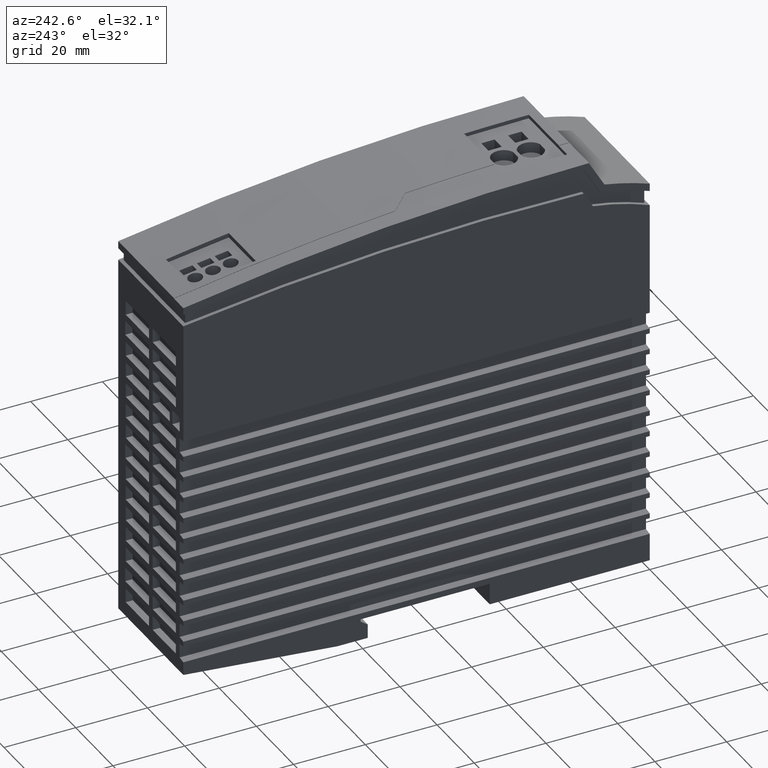
[diagram: clean part render]
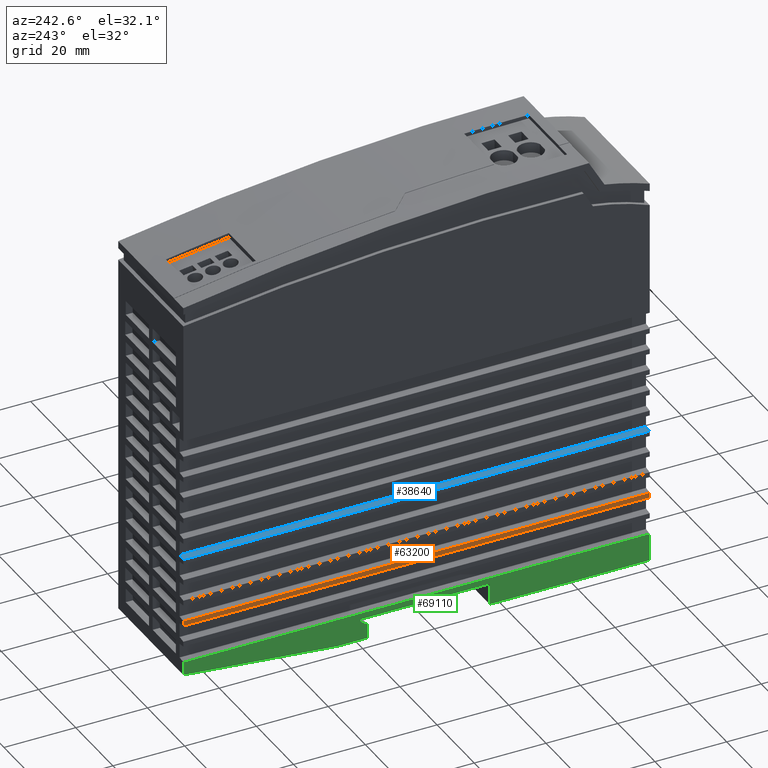
[diagram: same view with three faces highlighted in distinct colors, each labeled with its STEP entity id]
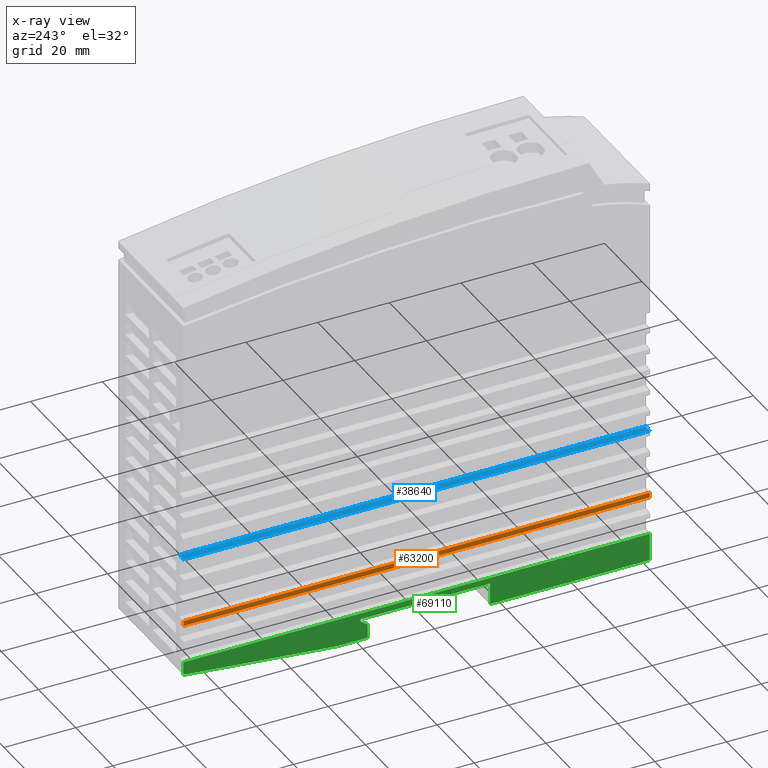
[diagram: x-ray of the same camera — body ghosted, the three highlighted faces saturated]
A machine part, auxiliary view with three faces highlighted in distinct colors.
The next image is the same camera in x-ray (body ghosted, the three faces saturated) — at least one of them is partly hidden behind the body in this view.
Their STEP definitions:

[orange] entity #63200 — the highlighted planar face has unit normal (-1, 0, 0).
#54170=CARTESIAN_POINT('',(13.6999999999996,130.,-8.5));
#54180=VERTEX_POINT('',#54170);
#54210=CARTESIAN_POINT('',(0.,130.,-8.5));
#54220=DIRECTION('',(-1.,0.,0.));
#54230=VECTOR('',#54220,1.);
#54240=LINE('',#54210,#54230);
#54250=CARTESIAN_POINT('',(12.3000000000004,130.,-8.5));
#54260=VERTEX_POINT('',#54250);
#54270=EDGE_CURVE('',#54180,#54260,#54240,.T.);
#61030=CARTESIAN_POINT('',(13.6999999999996,0.,-8.5));
#61040=VERTEX_POINT('',#61030);
#61070=CARTESIAN_POINT('',(13.6999999999996,0.,-8.5));
#61080=DIRECTION('',(0.,1.,0.));
#61090=VECTOR('',#61080,1.);
#61100=LINE('',#61070,#61090);
#61110=EDGE_CURVE('',#61040,#54180,#61100,.T.);
#62970=CARTESIAN_POINT('',(12.2448400000004,133.27016,-8.5));
#62980=DIRECTION('',(0.,0.,1.));
#62990=DIRECTION('',(1.,0.,0.));
#63000=AXIS2_PLACEMENT_3D('',#62970,#62980,#62990);
#63010=PLANE('',#63000);
#63020=CARTESIAN_POINT('',(0.,0.,-8.5));
#63030=DIRECTION('',(-1.,0.,0.));
#63040=VECTOR('',#63030,1.);
#63050=LINE('',#63020,#63040);
#63060=CARTESIAN_POINT('',(12.3000000000004,0.,-8.5));
#63070=VERTEX_POINT('',#63060);
#63080=EDGE_CURVE('',#61040,#63070,#63050,.T.);
#63090=ORIENTED_EDGE('',*,*,#63080,.F.);
#63100=CARTESIAN_POINT('',(12.3000000000004,0.,-8.5));
#63110=DIRECTION('',(0.,-1.,0.));
#63120=VECTOR('',#63110,1.);
#63130=LINE('',#63100,#63120);
#63140=EDGE_CURVE('',#54260,#63070,#63130,.T.);
#63150=ORIENTED_EDGE('',*,*,#63140,.T.);
#63160=ORIENTED_EDGE('',*,*,#54270,.T.);
#63170=ORIENTED_EDGE('',*,*,#61110,.T.);
#63180=EDGE_LOOP('',(#63170,#63160,#63150,#63090));
#63190=FACE_OUTER_BOUND('',#63180,.T.);
#63200=ADVANCED_FACE('',(#63190),#63010,.T.);

[blue] entity #38640 — the highlighted planar face has unit normal (-0.1483, 0, 0.9889).
#38250=CARTESIAN_POINT('',(31.6895094564685,-3.27016,-8.43006304312618))
;
#38260=DIRECTION('',(0.988936352868236,-0.,0.148340452930654));
#38270=DIRECTION('',(0.148340452930654,0.,-0.988936352868236));
#38280=AXIS2_PLACEMENT_3D('',#38250,#38260,#38270);
#38290=PLANE('',#38280);
#38300=CARTESIAN_POINT('',(30.424999999996,130.,0.));
#38310=DIRECTION('',(-0.148340452930654,0.,0.988936352868236));
#38320=VECTOR('',#38310,1.);
#38330=LINE('',#38300,#38320);
#38340=CARTESIAN_POINT('',(32.0000000000004,130.,-10.5));
#38350=VERTEX_POINT('',#38340);
#38360=CARTESIAN_POINT('',(31.6999999999996,130.,-8.50000000000001));
#38370=VERTEX_POINT('',#38360);
#38380=EDGE_CURVE('',#38350,#38370,#38330,.T.);
#38390=ORIENTED_EDGE('',*,*,#38380,.T.);
#38400=CARTESIAN_POINT('',(32.0000000000004,0.,-10.5));
#38410=DIRECTION('',(0.,-1.,0.));
#38420=VECTOR('',#38410,1.);
#38430=LINE('',#38400,#38420);
#38440=CARTESIAN_POINT('',(32.0000000000004,0.,-10.5));
#38450=VERTEX_POINT('',#38440);
#38460=EDGE_CURVE('',#38350,#38450,#38430,.T.);
#38470=ORIENTED_EDGE('',*,*,#38460,.F.);
#38480=CARTESIAN_POINT('',(30.424999999996,0.,0.));
#38490=DIRECTION('',(-0.148340452930654,0.,0.988936352868236));
#38500=VECTOR('',#38490,1.);
#38510=LINE('',#38480,#38500);
#38520=CARTESIAN_POINT('',(31.6999999999996,0.,-8.5));
#38530=VERTEX_POINT('',#38520);
#38540=EDGE_CURVE('',#38450,#38530,#38510,.T.);
#38550=ORIENTED_EDGE('',*,*,#38540,.F.);
#38560=CARTESIAN_POINT('',(31.6999999999996,0.,-8.5));
#38570=DIRECTION('',(0.,1.,0.));
#38580=VECTOR('',#38570,1.);
#38590=LINE('',#38560,#38580);
#38600=EDGE_CURVE('',#38530,#38370,#38590,.T.);
#38610=ORIENTED_EDGE('',*,*,#38600,.F.);
#38620=EDGE_LOOP('',(#38610,#38550,#38470,#38390));
#38630=FACE_OUTER_BOUND('',#38620,.T.);
#38640=ADVANCED_FACE('',(#38630),#38290,.T.);

[green] entity #69110 — the highlighted planar face has unit normal (-1, 0, 0).
#120=CARTESIAN_POINT('',(0.,80.6,-8.5));
#130=VERTEX_POINT('',#120);
#280=CARTESIAN_POINT('',(-0.674844346328719,80.6,-8.5));
#290=VERTEX_POINT('',#280);
#320=CARTESIAN_POINT('',(0.,80.6,-8.5));
#330=DIRECTION('',(1.,0.,0.));
#340=VECTOR('',#330,1.);
#350=LINE('',#320,#340);
#360=EDGE_CURVE('',#290,#130,#350,.T.);
#650=CARTESIAN_POINT('',(-2.07525942275066,78.5999999999962,-8.5));
#660=VERTEX_POINT('',#650);
#690=CARTESIAN_POINT('',(-57.1115719260258,0.,-8.5));
#700=DIRECTION('',(0.573576436351009,0.819152044289018,0.));
#710=VECTOR('',#700,1.);
#720=LINE('',#690,#710);
#730=EDGE_CURVE('',#660,#290,#720,.T.);
#1240=CARTESIAN_POINT('',(0.,0.,-8.5));
#1250=DIRECTION('',(0.,-1.,0.));
#1260=VECTOR('',#1250,1.);
#1270=LINE('',#1240,#1260);
#1280=CARTESIAN_POINT('',(0.,44.5999999999962,-8.5));
#1290=VERTEX_POINT('',#1280);
#1300=EDGE_CURVE('',#130,#1290,#1270,.T.);
#2630=CARTESIAN_POINT('',(-6.00000000000003,78.5999999999962,-8.5));
#2640=VERTEX_POINT('',#2630);
#2720=CARTESIAN_POINT('',(-6.00000000000003,87.1000000000223,-8.5));
#2730=VERTEX_POINT('',#2720);
#2760=CARTESIAN_POINT('',(-6.00000000000003,0.,-8.5));
#2770=DIRECTION('',(0.,1.,0.));
#2780=VECTOR('',#2770,1.);
#2790=LINE('',#2760,#2780);
#2800=EDGE_CURVE('',#2640,#2730,#2790,.T.);
#2970=CARTESIAN_POINT('',(0.,78.5999999999962,-8.5));
#2980=DIRECTION('',(1.,0.,0.));
#2990=VECTOR('',#2980,1.);
#3000=LINE('',#2970,#2990);
#3010=EDGE_CURVE('',#2640,#660,#3000,.T.);
#3600=CARTESIAN_POINT('',(-14.1212121212202,0.,-8.5));
#3610=DIRECTION('',(-0.0928374155221871,-0.99568128147473,0.));
#3620=VECTOR('',#3610,1.);
#3630=LINE('',#3600,#3620);
#3640=CARTESIAN_POINT('',(-1.99999999999918,130.,-8.5));
#3650=VERTEX_POINT('',#3640);
#3660=EDGE_CURVE('',#3650,#2730,#3630,.T.);
#54560=CARTESIAN_POINT('',(1.69999999999956,130.,-8.50000000000001));
#54570=VERTEX_POINT('',#54560);
#54600=CARTESIAN_POINT('',(0.,130.,-8.5));
#54610=DIRECTION('',(-1.,0.,0.));
#54620=VECTOR('',#54610,1.);
#54630=LINE('',#54600,#54620);
#54640=EDGE_CURVE('',#54570,#3650,#54630,.T.);
#63470=CARTESIAN_POINT('',(-6.,44.5999999999962,-8.5));
#63480=VERTEX_POINT('',#63470);
#63510=CARTESIAN_POINT('',(-6.,0.,-8.5));
#63520=DIRECTION('',(0.,-1.,0.));
#63530=VECTOR('',#63520,1.);
#63540=LINE('',#63510,#63530);
#63550=CARTESIAN_POINT('',(-6.,0.,-8.5));
#63560=VERTEX_POINT('',#63550);
#63570=EDGE_CURVE('',#63480,#63560,#63540,.T.);
#68760=CARTESIAN_POINT('',(-6.21266000000002,133.27016,-8.5));
#68770=DIRECTION('',(0.,0.,1.));
#68780=DIRECTION('',(1.,0.,0.));
#68790=AXIS2_PLACEMENT_3D('',#68760,#68770,#68780);
#68800=PLANE('',#68790);
#68810=ORIENTED_EDGE('',*,*,#63570,.T.);
#68820=CARTESIAN_POINT('',(0.,44.5999999999962,-8.5));
#68830=DIRECTION('',(-1.,0.,0.));
#68840=VECTOR('',#68830,1.);
#68850=LINE('',#68820,#68840);
#68860=EDGE_CURVE('',#1290,#63480,#68850,.T.);
#68870=ORIENTED_EDGE('',*,*,#68860,.T.);
#68880=ORIENTED_EDGE('',*,*,#1300,.T.);
#68890=ORIENTED_EDGE('',*,*,#360,.T.);
#68900=ORIENTED_EDGE('',*,*,#730,.T.);
#68910=ORIENTED_EDGE('',*,*,#3010,.T.);
#68920=ORIENTED_EDGE('',*,*,#2800,.F.);
#68930=ORIENTED_EDGE('',*,*,#3660,.T.);
#68940=ORIENTED_EDGE('',*,*,#54640,.T.);
#68950=CARTESIAN_POINT('',(1.69999999999957,0.,-8.5));
#68960=DIRECTION('',(0.,1.,0.));
#68970=VECTOR('',#68960,1.);
#68980=LINE('',#68950,#68970);
#68990=CARTESIAN_POINT('',(1.69999999999956,0.,-8.5));
#69000=VERTEX_POINT('',#68990);
#69010=EDGE_CURVE('',#69000,#54570,#68980,.T.);
#69020=ORIENTED_EDGE('',*,*,#69010,.T.);
#69030=CARTESIAN_POINT('',(0.,0.,-8.5));
#69040=DIRECTION('',(-1.,0.,0.));
#69050=VECTOR('',#69040,1.);
#69060=LINE('',#69030,#69050);
#69070=EDGE_CURVE('',#69000,#63560,#69060,.T.);
#69080=ORIENTED_EDGE('',*,*,#69070,.F.);
#69090=EDGE_LOOP('',(#69080,#69020,#68940,#68930,#68920,#68910,#68900,
#68890,#68880,#68870,#68810));
#69100=FACE_OUTER_BOUND('',#69090,.T.);
#69110=ADVANCED_FACE('',(#69100),#68800,.T.);